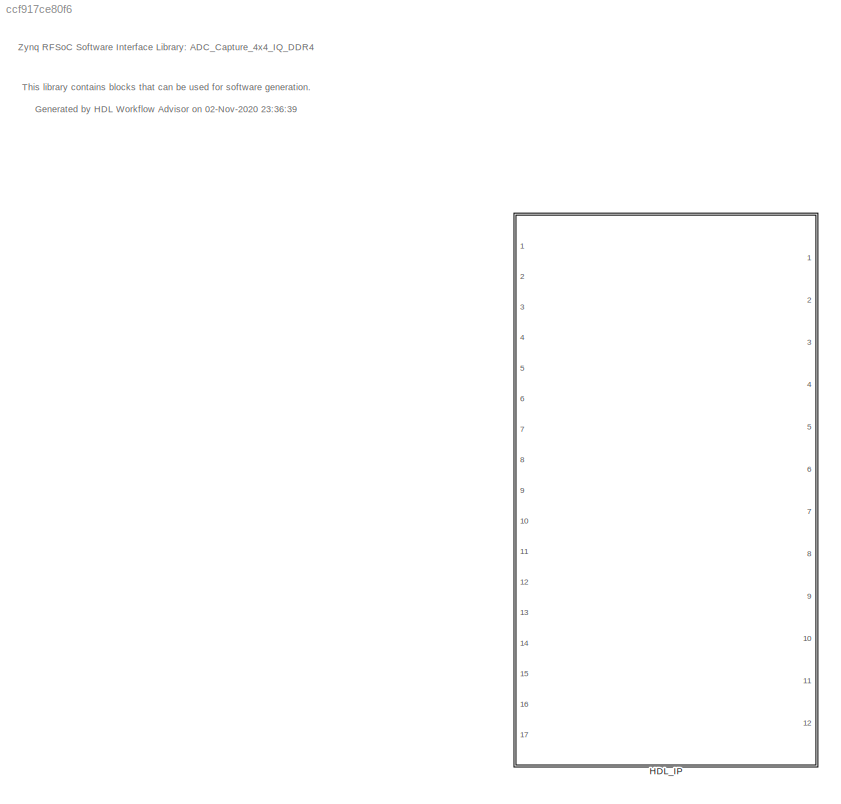
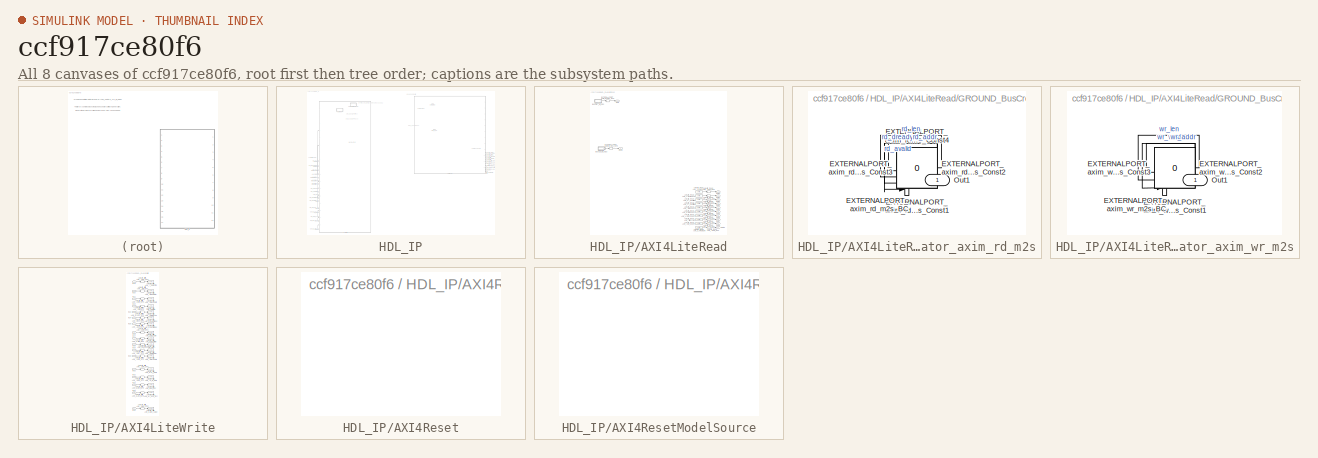
[diagram: thumbnail index - all 8 canvases of the model, root first then tree order]
MODEL slx_ccf917ce80f6
KIND library
CONFIG AbsTol = auto
CONFIG EnableMultiTasking = off
CONFIG FixedStep = auto
CONFIG MaxStep = auto
CONFIG MinStep = auto
CONFIG RelTol = 1e-3
CONFIG SampleTimeConstraint = Unconstrained
CONFIG Solver = VariableStepAuto
CONFIG SolverName = VariableStepAuto
CONFIG StartTime = 0.0
CONFIG StopTime = 10.0
BLOCK [SubSystem] HDL_IP
  Ports = [17, 12]
  RequestExecContextInheritance = off
  TreatAsAtomicUnit = on
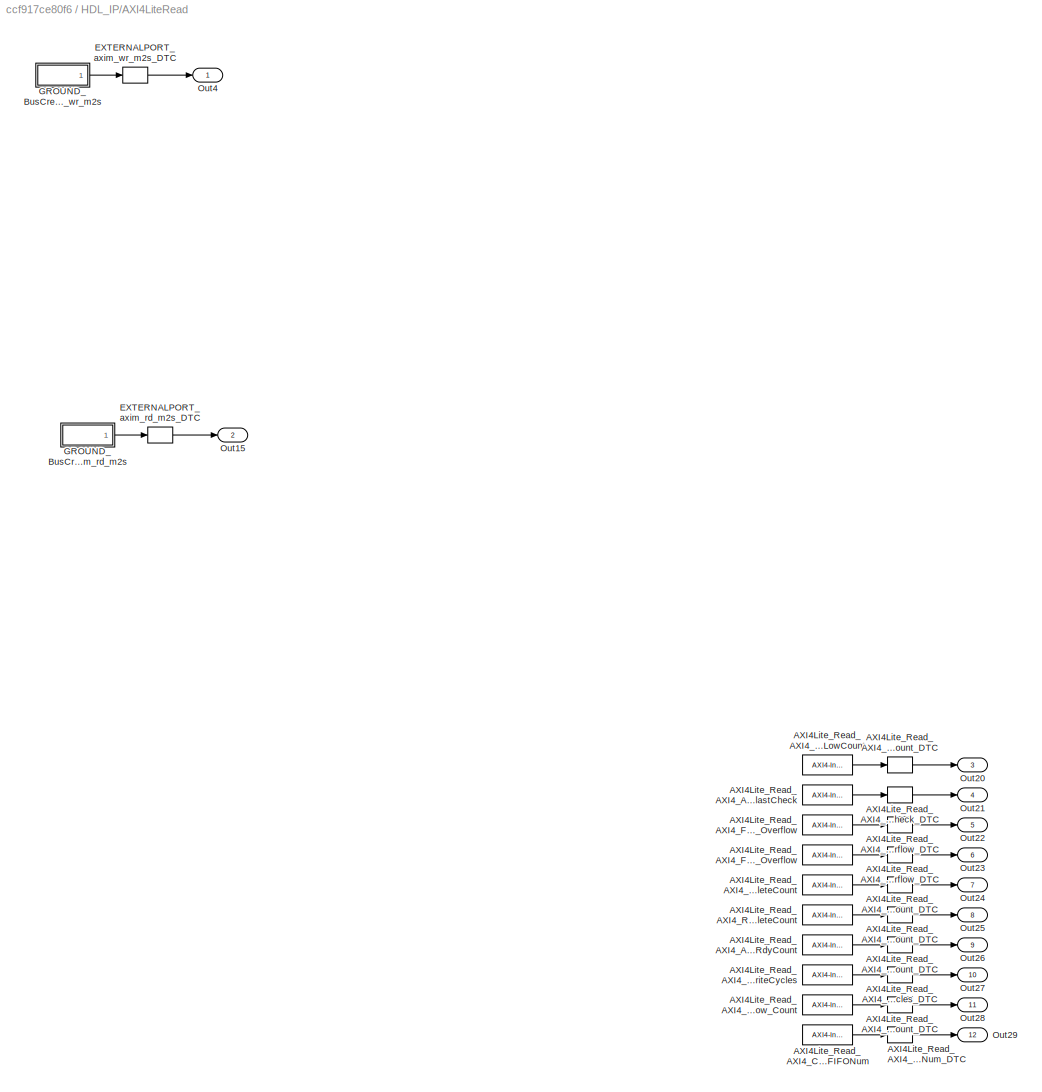
BLOCK [SubSystem] HDL_IP/AXI4LiteRead
  Ports = [0, 12]
  Priority = 10
  RequestExecContextInheritance = off
BLOCK [Reference] HDL_IP/AXI4LiteRead/AXI4Lite_Read_AXI4_AXI4S_TlastCheck  REF=axiinterfacelib/AXI4-Interface Read
  Ports = [0, 1]
  Priority = 22
  SourceBlock = axiinterfacelib/AXI4-Interface Read
  SourceProductBaseCode = ECZYNQ7000
  SourceProductName = Embedded Coder Support Package for Xilinx Zynq Platform
  SourceType = AXI4-Interface Read
BLOCK [DataTypeConversion] HDL_IP/AXI4LiteRead/AXI4Lite_Read_AXI4_AXI4S_TlastCheck_DTC
  ConvertRealWorld = Stored Integer (SI)
  OutDataTypeStr = fixdt('int32')
  RndMeth = Floor
  SaturateOnIntegerOverflow = off
BLOCK [Reference] HDL_IP/AXI4LiteRead/AXI4Lite_Read_AXI4_AccumulatedWrRdyCount  REF=axiinterfacelib/AXI4-Interface Read
  Ports = [0, 1]
  Priority = 27
  SourceBlock = axiinterfacelib/AXI4-Interface Read
  SourceProductBaseCode = ECZYNQ7000
  SourceProductName = Embedded Coder Support Package for Xilinx Zynq Platform
  SourceType = AXI4-Interface Read
BLOCK [DataTypeConversion] HDL_IP/AXI4LiteRead/AXI4Lite_Read_AXI4_AccumulatedWrRdyCount_DTC
  ConvertRealWorld = Stored Integer (SI)
  OutDataTypeStr = fixdt('uint32')
  RndMeth = Floor
  SaturateOnIntegerOverflow = off
BLOCK [Reference] HDL_IP/AXI4LiteRead/AXI4Lite_Read_AXI4_AckLow_Count  REF=axiinterfacelib/AXI4-Interface Read
  Ports = [0, 1]
  Priority = 29
  SourceBlock = axiinterfacelib/AXI4-Interface Read
  SourceProductBaseCode = ECZYNQ7000
  SourceProductName = Embedded Coder Support Package for Xilinx Zynq Platform
  SourceType = AXI4-Interface Read
BLOCK [DataTypeConversion] HDL_IP/AXI4LiteRead/AXI4Lite_Read_AXI4_AckLow_Count_DTC
  ConvertRealWorld = Stored Integer (SI)
  OutDataTypeStr = fixdt('uint32')
  RndMeth = Floor
  SaturateOnIntegerOverflow = off
BLOCK [Reference] HDL_IP/AXI4LiteRead/AXI4Lite_Read_AXI4_CaptureFIFONum  REF=axiinterfacelib/AXI4-Interface Read
  Ports = [0, 1]
  Priority = 30
  SourceBlock = axiinterfacelib/AXI4-Interface Read
  SourceProductBaseCode = ECZYNQ7000
  SourceProductName = Embedded Coder Support Package for Xilinx Zynq Platform
  SourceType = AXI4-Interface Read
BLOCK [DataTypeConversion] HDL_IP/AXI4LiteRead/AXI4Lite_Read_AXI4_CaptureFIFONum_DTC
  ConvertRealWorld = Stored Integer (SI)
  OutDataTypeStr = fixdt('uint32')
  RndMeth = Floor
  SaturateOnIntegerOverflow = off
BLOCK [Reference] HDL_IP/AXI4LiteRead/AXI4Lite_Read_AXI4_FIFOCapture_Overflow  REF=axiinterfacelib/AXI4-Interface Read
  Ports = [0, 1]
  Priority = 23
  SourceBlock = axiinterfacelib/AXI4-Interface Read
  SourceProductBaseCode = ECZYNQ7000
  SourceProductName = Embedded Coder Support Package for Xilinx Zynq Platform
  SourceType = AXI4-Interface Read
BLOCK [DataTypeConversion] HDL_IP/AXI4LiteRead/AXI4Lite_Read_AXI4_FIFOCapture_Overflow_DTC
  ConvertRealWorld = Stored Integer (SI)
  OutDataTypeStr = fixdt('uint32')
  RndMeth = Floor
  SaturateOnIntegerOverflow = off
BLOCK [Reference] HDL_IP/AXI4LiteRead/AXI4Lite_Read_AXI4_FIFODMA_Overflow  REF=axiinterfacelib/AXI4-Interface Read
  Ports = [0, 1]
  Priority = 24
  SourceBlock = axiinterfacelib/AXI4-Interface Read
  SourceProductBaseCode = ECZYNQ7000
  SourceProductName = Embedded Coder Support Package for Xilinx Zynq Platform
  SourceType = AXI4-Interface Read
BLOCK [DataTypeConversion] HDL_IP/AXI4LiteRead/AXI4Lite_Read_AXI4_FIFODMA_Overflow_DTC
  ConvertRealWorld = Stored Integer (SI)
  OutDataTypeStr = fixdt('uint32')
  RndMeth = Floor
  SaturateOnIntegerOverflow = off
BLOCK [Reference] HDL_IP/AXI4LiteRead/AXI4Lite_Read_AXI4_ReadCompleteCount  REF=axiinterfacelib/AXI4-Interface Read
  Ports = [0, 1]
  Priority = 26
  SourceBlock = axiinterfacelib/AXI4-Interface Read
  SourceProductBaseCode = ECZYNQ7000
  SourceProductName = Embedded Coder Support Package for Xilinx Zynq Platform
  SourceType = AXI4-Interface Read
BLOCK [DataTypeConversion] HDL_IP/AXI4LiteRead/AXI4Lite_Read_AXI4_ReadCompleteCount_DTC
  ConvertRealWorld = Stored Integer (SI)
  OutDataTypeStr = fixdt('uint32')
  RndMeth = Floor
  SaturateOnIntegerOverflow = off
BLOCK [Reference] HDL_IP/AXI4LiteRead/AXI4Lite_Read_AXI4_S2MM_TreadyLowCount  REF=axiinterfacelib/AXI4-Interface Read
  Ports = [0, 1]
  Priority = 21
  SourceBlock = axiinterfacelib/AXI4-Interface Read
  SourceProductBaseCode = ECZYNQ7000
  SourceProductName = Embedded Coder Support Package for Xilinx Zynq Platform
  SourceType = AXI4-Interface Read
BLOCK [DataTypeConversion] HDL_IP/AXI4LiteRead/AXI4Lite_Read_AXI4_S2MM_TreadyLowCount_DTC
  ConvertRealWorld = Stored Integer (SI)
  OutDataTypeStr = fixdt('uint32')
  RndMeth = Floor
  SaturateOnIntegerOverflow = off
BLOCK [Reference] HDL_IP/AXI4LiteRead/AXI4Lite_Read_AXI4_WastedWriteCycles  REF=axiinterfacelib/AXI4-Interface Read
  Ports = [0, 1]
  Priority = 28
  SourceBlock = axiinterfacelib/AXI4-Interface Read
  SourceProductBaseCode = ECZYNQ7000
  SourceProductName = Embedded Coder Support Package for Xilinx Zynq Platform
  SourceType = AXI4-Interface Read
BLOCK [DataTypeConversion] HDL_IP/AXI4LiteRead/AXI4Lite_Read_AXI4_WastedWriteCycles_DTC
  ConvertRealWorld = Stored Integer (SI)
  OutDataTypeStr = fixdt('uint32')
  RndMeth = Floor
  SaturateOnIntegerOverflow = off
BLOCK [Reference] HDL_IP/AXI4LiteRead/AXI4Lite_Read_AXI4_WriteCompleteCount  REF=axiinterfacelib/AXI4-Interface Read
  Ports = [0, 1]
  Priority = 25
  SourceBlock = axiinterfacelib/AXI4-Interface Read
  SourceProductBaseCode = ECZYNQ7000
  SourceProductName = Embedded Coder Support Package for Xilinx Zynq Platform
  SourceType = AXI4-Interface Read
BLOCK [DataTypeConversion] HDL_IP/AXI4LiteRead/AXI4Lite_Read_AXI4_WriteCompleteCount_DTC
  ConvertRealWorld = Stored Integer (SI)
  OutDataTypeStr = fixdt('uint32')
  RndMeth = Floor
  SaturateOnIntegerOverflow = off
BLOCK [DataTypeConversion] HDL_IP/AXI4LiteRead/EXTERNALPORT_axim_rd_m2s_DTC
  Commented = through
  OutDataTypeStr = fixdt('bus')
  RndMeth = Floor
  SaturateOnIntegerOverflow = off
BLOCK [DataTypeConversion] HDL_IP/AXI4LiteRead/EXTERNALPORT_axim_wr_m2s_DTC
  Commented = through
  OutDataTypeStr = fixdt('bus')
  RndMeth = Floor
  SaturateOnIntegerOverflow = off
BLOCK [SubSystem] HDL_IP/AXI4LiteRead/GROUND_BusCreator_axim_rd_m2s
  Ports = [0, 1]
  RequestExecContextInheritance = off
BLOCK [BusCreator] HDL_IP/AXI4LiteRead/GROUND_BusCreator_axim_rd_m2s/EXTERNALPORT_axim_rd_m2s_BC
  DisplayOption = bar
  InheritFromInputs = on
  Inputs = 4
  Ports = [4, 1]
BLOCK [Constant] HDL_IP/AXI4LiteRead/GROUND_BusCreator_axim_rd_m2s/EXTERNALPORT_axim_rd_m2s_Const1
  OutDataTypeStr = fixdt(0,32,0)
  SampleTime = -1
  Value = 0
BLOCK [Constant] HDL_IP/AXI4LiteRead/GROUND_BusCreator_axim_rd_m2s/EXTERNALPORT_axim_rd_m2s_Const2
  OutDataTypeStr = fixdt(0,32,0)
  SampleTime = -1
  Value = 0
BLOCK [Constant] HDL_IP/AXI4LiteRead/GROUND_BusCreator_axim_rd_m2s/EXTERNALPORT_axim_rd_m2s_Const3
  OutDataTypeStr = fixdt('boolean')
  SampleTime = -1
  Value = 0
BLOCK [Constant] HDL_IP/AXI4LiteRead/GROUND_BusCreator_axim_rd_m2s/EXTERNALPORT_axim_rd_m2s_Const4
  OutDataTypeStr = fixdt('boolean')
  SampleTime = -1
  Value = 0
BLOCK [Outport] HDL_IP/AXI4LiteRead/GROUND_BusCreator_axim_rd_m2s/Out1
  IconDisplay = Port number
BLOCK [SubSystem] HDL_IP/AXI4LiteRead/GROUND_BusCreator_axim_wr_m2s
  Ports = [0, 1]
  RequestExecContextInheritance = off
BLOCK [BusCreator] HDL_IP/AXI4LiteRead/GROUND_BusCreator_axim_wr_m2s/EXTERNALPORT_axim_wr_m2s_BC
  DisplayOption = bar
  InheritFromInputs = on
  Inputs = 3
  Ports = [3, 1]
BLOCK [Constant] HDL_IP/AXI4LiteRead/GROUND_BusCreator_axim_wr_m2s/EXTERNALPORT_axim_wr_m2s_Const1
  OutDataTypeStr = fixdt(0,32,0)
  SampleTime = -1
  Value = 0
BLOCK [Constant] HDL_IP/AXI4LiteRead/GROUND_BusCreator_axim_wr_m2s/EXTERNALPORT_axim_wr_m2s_Const2
  OutDataTypeStr = fixdt(0,32,0)
  SampleTime = -1
  Value = 0
BLOCK [Constant] HDL_IP/AXI4LiteRead/GROUND_BusCreator_axim_wr_m2s/EXTERNALPORT_axim_wr_m2s_Const3
  OutDataTypeStr = fixdt('boolean')
  SampleTime = -1
  Value = 0
BLOCK [Outport] HDL_IP/AXI4LiteRead/GROUND_BusCreator_axim_wr_m2s/Out1
  IconDisplay = Port number
BLOCK [Outport] HDL_IP/AXI4LiteRead/Out15
  IconDisplay = Port number
  Port = 2
BLOCK [Outport] HDL_IP/AXI4LiteRead/Out20
  IconDisplay = Port number
  Port = 3
BLOCK [Outport] HDL_IP/AXI4LiteRead/Out21
  IconDisplay = Port number
  Port = 4
BLOCK [Outport] HDL_IP/AXI4LiteRead/Out22
  IconDisplay = Port number
  Port = 5
BLOCK [Outport] HDL_IP/AXI4LiteRead/Out23
  IconDisplay = Port number
  Port = 6
BLOCK [Outport] HDL_IP/AXI4LiteRead/Out24
  IconDisplay = Port number
  Port = 7
BLOCK [Outport] HDL_IP/AXI4LiteRead/Out25
  IconDisplay = Port number
  Port = 8
BLOCK [Outport] HDL_IP/AXI4LiteRead/Out26
  IconDisplay = Port number
  Port = 9
BLOCK [Outport] HDL_IP/AXI4LiteRead/Out27
  IconDisplay = Port number
  Port = 10
BLOCK [Outport] HDL_IP/AXI4LiteRead/Out28
  IconDisplay = Port number
  Port = 11
BLOCK [Outport] HDL_IP/AXI4LiteRead/Out29
  IconDisplay = Port number
  Port = 12
BLOCK [Outport] HDL_IP/AXI4LiteRead/Out4
  IconDisplay = Port number
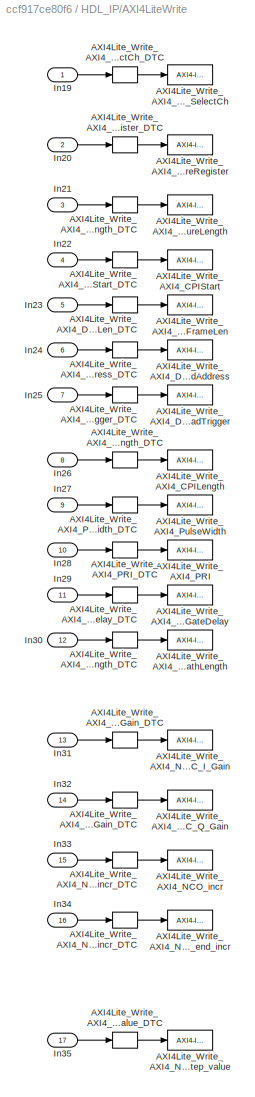
BLOCK [SubSystem] HDL_IP/AXI4LiteWrite
  Ports = [17]
  Priority = 1
  RequestExecContextInheritance = off
BLOCK [Reference] HDL_IP/AXI4LiteWrite/AXI4Lite_Write_AXI4_ADC_CaptureLength  REF=axiinterfacelib/AXI4-Interface Write
  Ports = [1]
  Priority = 22
  SourceBlock = axiinterfacelib/AXI4-Interface Write
  SourceProductBaseCode = ECZYNQ7000
  SourceProductName = Embedded Coder Support Package for Xilinx Zynq Platform
  SourceType = AXI4-Interface Write
BLOCK [DataTypeConversion] HDL_IP/AXI4LiteWrite/AXI4Lite_Write_AXI4_ADC_CaptureLength_DTC
  ConvertRealWorld = Stored Integer (SI)
  OutDataTypeStr = uint32
  RndMeth = Floor
  SaturateOnIntegerOverflow = off
BLOCK [Reference] HDL_IP/AXI4LiteWrite/AXI4Lite_Write_AXI4_ADC_SelectCh  REF=axiinterfacelib/AXI4-Interface Write
  Ports = [1]
  Priority = 19
  SourceBlock = axiinterfacelib/AXI4-Interface Write
  SourceProductBaseCode = ECZYNQ7000
  SourceProductName = Embedded Coder Support Package for Xilinx Zynq Platform
  SourceType = AXI4-Interface Write
BLOCK [DataTypeConversion] HDL_IP/AXI4LiteWrite/AXI4Lite_Write_AXI4_ADC_SelectCh_DTC
  ConvertRealWorld = Stored Integer (SI)
  OutDataTypeStr = uint32
  RndMeth = Floor
  SaturateOnIntegerOverflow = off
BLOCK [Reference] HDL_IP/AXI4LiteWrite/AXI4Lite_Write_AXI4_CPILength  REF=axiinterfacelib/AXI4-Interface Write
  Ports = [1]
  Priority = 26
  SourceBlock = axiinterfacelib/AXI4-Interface Write
  SourceProductBaseCode = ECZYNQ7000
  SourceProductName = Embedded Coder Support Package for Xilinx Zynq Platform
  SourceType = AXI4-Interface Write
BLOCK [DataTypeConversion] HDL_IP/AXI4LiteWrite/AXI4Lite_Write_AXI4_CPILength_DTC
  ConvertRealWorld = Stored Integer (SI)
  OutDataTypeStr = uint32
  RndMeth = Floor
  SaturateOnIntegerOverflow = off
BLOCK [Reference] HDL_IP/AXI4LiteWrite/AXI4Lite_Write_AXI4_CPIStart  REF=axiinterfacelib/AXI4-Interface Write
  Ports = [1]
  Priority = 20
  SourceBlock = axiinterfacelib/AXI4-Interface Write
  SourceProductBaseCode = ECZYNQ7000
  SourceProductName = Embedded Coder Support Package for Xilinx Zynq Platform
  SourceType = AXI4-Interface Write
BLOCK [DataTypeConversion] HDL_IP/AXI4LiteWrite/AXI4Lite_Write_AXI4_CPIStart_DTC
  ConvertRealWorld = Stored Integer (SI)
  OutDataTypeStr = uint32
  RndMeth = Floor
  SaturateOnIntegerOverflow = off
BLOCK [Reference] HDL_IP/AXI4LiteWrite/AXI4Lite_Write_AXI4_DDR4_ReadAddress  REF=axiinterfacelib/AXI4-Interface Write
  Ports = [1]
  Priority = 24
  SourceBlock = axiinterfacelib/AXI4-Interface Write
  SourceProductBaseCode = ECZYNQ7000
  SourceProductName = Embedded Coder Support Package for Xilinx Zynq Platform
  SourceType = AXI4-Interface Write
BLOCK [DataTypeConversion] HDL_IP/AXI4LiteWrite/AXI4Lite_Write_AXI4_DDR4_ReadAddress_DTC
  ConvertRealWorld = Stored Integer (SI)
  OutDataTypeStr = uint32
  RndMeth = Floor
  SaturateOnIntegerOverflow = off
BLOCK [Reference] HDL_IP/AXI4LiteWrite/AXI4Lite_Write_AXI4_DDR4_ReadFrameLen  REF=axiinterfacelib/AXI4-Interface Write
  Ports = [1]
  Priority = 23
  SourceBlock = axiinterfacelib/AXI4-Interface Write
  SourceProductBaseCode = ECZYNQ7000
  SourceProductName = Embedded Coder Support Package for Xilinx Zynq Platform
  SourceType = AXI4-Interface Write
BLOCK [DataTypeConversion] HDL_IP/AXI4LiteWrite/AXI4Lite_Write_AXI4_DDR4_ReadFrameLen_DTC
  ConvertRealWorld = Stored Integer (SI)
  OutDataTypeStr = uint32
  RndMeth = Floor
  SaturateOnIntegerOverflow = off
BLOCK [Reference] HDL_IP/AXI4LiteWrite/AXI4Lite_Write_AXI4_DDR4_ReadTrigger  REF=axiinterfacelib/AXI4-Interface Write
  Ports = [1]
  Priority = 25
  SourceBlock = axiinterfacelib/AXI4-Interface Write
  SourceProductBaseCode = ECZYNQ7000
  SourceProductName = Embedded Coder Support Package for Xilinx Zynq Platform
  SourceType = AXI4-Interface Write
BLOCK [DataTypeConversion] HDL_IP/AXI4LiteWrite/AXI4Lite_Write_AXI4_DDR4_ReadTrigger_DTC
  ConvertRealWorld = Stored Integer (SI)
  OutDataTypeStr = uint32
  RndMeth = Floor
  SaturateOnIntegerOverflow = off
BLOCK [Reference] HDL_IP/AXI4LiteWrite/AXI4Lite_Write_AXI4_DebugCaptureRegister  REF=axiinterfacelib/AXI4-Interface Write
  Ports = [1]
  Priority = 21
  SourceBlock = axiinterfacelib/AXI4-Interface Write
  SourceProductBaseCode = ECZYNQ7000
  SourceProductName = Embedded Coder Support Package for Xilinx Zynq Platform
  SourceType = AXI4-Interface Write
BLOCK [DataTypeConversion] HDL_IP/AXI4LiteWrite/AXI4Lite_Write_AXI4_DebugCaptureRegister_DTC
  ConvertRealWorld = Stored Integer (SI)
  OutDataTypeStr = uint32
  RndMeth = Floor
  SaturateOnIntegerOverflow = off
BLOCK [Reference] HDL_IP/AXI4LiteWrite/AXI4Lite_Write_AXI4_NCO_DAC_I_Gain  REF=axiinterfacelib/AXI4-Interface Write
  Ports = [1]
  Priority = 32
  SourceBlock = axiinterfacelib/AXI4-Interface Write
  SourceProductBaseCode = ECZYNQ7000
  SourceProductName = Embedded Coder Support Package for Xilinx Zynq Platform
  SourceType = AXI4-Interface Write
BLOCK [DataTypeConversion] HDL_IP/AXI4LiteWrite/AXI4Lite_Write_AXI4_NCO_DAC_I_Gain_DTC
  ConvertRealWorld = Stored Integer (SI)
  OutDataTypeStr = uint32
  RndMeth = Floor
  SaturateOnIntegerOverflow = off
BLOCK [Reference] HDL_IP/AXI4LiteWrite/AXI4Lite_Write_AXI4_NCO_DAC_Q_Gain  REF=axiinterfacelib/AXI4-Interface Write
  Ports = [1]
  Priority = 33
  SourceBlock = axiinterfacelib/AXI4-Interface Write
  SourceProductBaseCode = ECZYNQ7000
  SourceProductName = Embedded Coder Support Package for Xilinx Zynq Platform
  SourceType = AXI4-Interface Write
BLOCK [DataTypeConversion] HDL_IP/AXI4LiteWrite/AXI4Lite_Write_AXI4_NCO_DAC_Q_Gain_DTC
  ConvertRealWorld = Stored Integer (SI)
  OutDataTypeStr = uint32
  RndMeth = Floor
  SaturateOnIntegerOverflow = off
BLOCK [Reference] HDL_IP/AXI4LiteWrite/AXI4Lite_Write_AXI4_NCO_end_incr  REF=axiinterfacelib/AXI4-Interface Write
  Ports = [1]
  Priority = 34
  SourceBlock = axiinterfacelib/AXI4-Interface Write
  SourceProductBaseCode = ECZYNQ7000
  SourceProductName = Embedded Coder Support Package for Xilinx Zynq Platform
  SourceType = AXI4-Interface Write
BLOCK [DataTypeConversion] HDL_IP/AXI4LiteWrite/AXI4Lite_Write_AXI4_NCO_end_incr_DTC
  ConvertRealWorld = Stored Integer (SI)
  OutDataTypeStr = uint32
  RndMeth = Floor
  SaturateOnIntegerOverflow = off
BLOCK [Reference] HDL_IP/AXI4LiteWrite/AXI4Lite_Write_AXI4_NCO_incr  REF=axiinterfacelib/AXI4-Interface Write
  Ports = [1]
  Priority = 31
  SourceBlock = axiinterfacelib/AXI4-Interface Write
  SourceProductBaseCode = ECZYNQ7000
  SourceProductName = Embedded Coder Support Package for Xilinx Zynq Platform
  SourceType = AXI4-Interface Write
BLOCK [DataTypeConversion] HDL_IP/AXI4LiteWrite/AXI4Lite_Write_AXI4_NCO_incr_DTC
  ConvertRealWorld = Stored Integer (SI)
  OutDataTypeStr = uint32
  RndMeth = Floor
  SaturateOnIntegerOverflow = off
BLOCK [Reference] HDL_IP/AXI4LiteWrite/AXI4Lite_Write_AXI4_NCO_step_value  REF=axiinterfacelib/AXI4-Interface Write
  Ports = [1]
  Priority = 35
  SourceBlock = axiinterfacelib/AXI4-Interface Write
  SourceProductBaseCode = ECZYNQ7000
  SourceProductName = Embedded Coder Support Package for Xilinx Zynq Platform
  SourceType = AXI4-Interface Write
BLOCK [DataTypeConversion] HDL_IP/AXI4LiteWrite/AXI4Lite_Write_AXI4_NCO_step_value_DTC
  ConvertRealWorld = Stored Integer (SI)
  OutDataTypeStr = uint32
  RndMeth = Floor
  SaturateOnIntegerOverflow = off
BLOCK [Reference] HDL_IP/AXI4LiteWrite/AXI4Lite_Write_AXI4_PRI  REF=axiinterfacelib/AXI4-Interface Write
  Ports = [1]
  Priority = 28
  SourceBlock = axiinterfacelib/AXI4-Interface Write
  SourceProductBaseCode = ECZYNQ7000
  SourceProductName = Embedded Coder Support Package for Xilinx Zynq Platform
  SourceType = AXI4-Interface Write
BLOCK [DataTypeConversion] HDL_IP/AXI4LiteWrite/AXI4Lite_Write_AXI4_PRI_DTC
  ConvertRealWorld = Stored Integer (SI)
  OutDataTypeStr = uint32
  RndMeth = Floor
  SaturateOnIntegerOverflow = off
BLOCK [Reference] HDL_IP/AXI4LiteWrite/AXI4Lite_Write_AXI4_PulseWidth  REF=axiinterfacelib/AXI4-Interface Write
  Ports = [1]
  Priority = 27
  SourceBlock = axiinterfacelib/AXI4-Interface Write
  SourceProductBaseCode = ECZYNQ7000
  SourceProductName = Embedded Coder Support Package for Xilinx Zynq Platform
  SourceType = AXI4-Interface Write
BLOCK [DataTypeConversion] HDL_IP/AXI4LiteWrite/AXI4Lite_Write_AXI4_PulseWidth_DTC
  ConvertRealWorld = Stored Integer (SI)
  OutDataTypeStr = uint32
  RndMeth = Floor
  SaturateOnIntegerOverflow = off
BLOCK [Reference] HDL_IP/AXI4LiteWrite/AXI4Lite_Write_AXI4_RngGateDelay  REF=axiinterfacelib/AXI4-Interface Write
  Ports = [1]
  Priority = 29
  SourceBlock = axiinterfacelib/AXI4-Interface Write
  SourceProductBaseCode = ECZYNQ7000
  SourceProductName = Embedded Coder Support Package for Xilinx Zynq Platform
  SourceType = AXI4-Interface Write
BLOCK [DataTypeConversion] HDL_IP/AXI4LiteWrite/AXI4Lite_Write_AXI4_RngGateDelay_DTC
  ConvertRealWorld = Stored Integer (SI)
  OutDataTypeStr = uint32
  RndMeth = Floor
  SaturateOnIntegerOverflow = off
BLOCK [Reference] HDL_IP/AXI4LiteWrite/AXI4Lite_Write_AXI4_RngSwathLength  REF=axiinterfacelib/AXI4-Interface Write
  Ports = [1]
  Priority = 30
  SourceBlock = axiinterfacelib/AXI4-Interface Write
  SourceProductBaseCode = ECZYNQ7000
  SourceProductName = Embedded Coder Support Package for Xilinx Zynq Platform
  SourceType = AXI4-Interface Write
BLOCK [DataTypeConversion] HDL_IP/AXI4LiteWrite/AXI4Lite_Write_AXI4_RngSwathLength_DTC
  ConvertRealWorld = Stored Integer (SI)
  OutDataTypeStr = uint32
  RndMeth = Floor
  SaturateOnIntegerOverflow = off
BLOCK [Inport] HDL_IP/AXI4LiteWrite/In19
  IconDisplay = Port number
BLOCK [Inport] HDL_IP/AXI4LiteWrite/In20
  IconDisplay = Port number
  Port = 2
BLOCK [Inport] HDL_IP/AXI4LiteWrite/In21
  IconDisplay = Port number
  Port = 3
BLOCK [Inport] HDL_IP/AXI4LiteWrite/In22
  IconDisplay = Port number
  Port = 4
BLOCK [Inport] HDL_IP/AXI4LiteWrite/In23
  IconDisplay = Port number
  Port = 5
BLOCK [Inport] HDL_IP/AXI4LiteWrite/In24
  IconDisplay = Port number
  Port = 6
BLOCK [Inport] HDL_IP/AXI4LiteWrite/In25
  IconDisplay = Port number
  Port = 7
BLOCK [Inport] HDL_IP/AXI4LiteWrite/In26
  IconDisplay = Port number
  Port = 8
BLOCK [Inport] HDL_IP/AXI4LiteWrite/In27
  IconDisplay = Port number
  Port = 9
BLOCK [Inport] HDL_IP/AXI4LiteWrite/In28
  IconDisplay = Port number
  Port = 10
BLOCK [Inport] HDL_IP/AXI4LiteWrite/In29
  IconDisplay = Port number
  Port = 11
BLOCK [Inport] HDL_IP/AXI4LiteWrite/In30
  IconDisplay = Port number
  Port = 12
BLOCK [Inport] HDL_IP/AXI4LiteWrite/In31
  IconDisplay = Port number
  Port = 13
BLOCK [Inport] HDL_IP/AXI4LiteWrite/In32
  IconDisplay = Port number
  Port = 14
BLOCK [Inport] HDL_IP/AXI4LiteWrite/In33
  IconDisplay = Port number
  Port = 15
BLOCK [Inport] HDL_IP/AXI4LiteWrite/In34
  IconDisplay = Port number
  Port = 16
BLOCK [Inport] HDL_IP/AXI4LiteWrite/In35
  IconDisplay = Port number
  Port = 17
BLOCK [SubSystem] HDL_IP/AXI4Reset
  CopyFcn = cccopyfcn(gcb)
  OpenFcn = ccopenfcn('System Start Function')
  Ports = []
  RequestExecContextInheritance = off
BLOCK [SubSystem] HDL_IP/AXI4ResetModelSource
  CopyFcn = cccopyfcn(gcb)
  OpenFcn = ccopenfcn('Model Source')
  Ports = []
  RequestExecContextInheritance = off
BLOCK [Inport] HDL_IP/AXI4_ADC_CaptureLength
  IconDisplay = Port number
  Port = 4
BLOCK [Inport] HDL_IP/AXI4_ADC_SelectCh
  IconDisplay = Port number
BLOCK [Outport] HDL_IP/AXI4_AXI4S_TlastCheck
  IconDisplay = Port number
  Port = 4
  VectorParamsAs1DForOutWhenUnconnected = off
BLOCK [Outport] HDL_IP/AXI4_AccumulatedWrRdyCount
  IconDisplay = Port number
  Port = 9
  VectorParamsAs1DForOutWhenUnconnected = off
BLOCK [Outport] HDL_IP/AXI4_AckLow_Count
  IconDisplay = Port number
  Port = 11
  VectorParamsAs1DForOutWhenUnconnected = off
BLOCK [Inport] HDL_IP/AXI4_CPILength
  IconDisplay = Port number
  Port = 8
BLOCK [Inport] HDL_IP/AXI4_CPIStart
  IconDisplay = Port number
  Port = 2
BLOCK [Outport] HDL_IP/AXI4_CaptureFIFONum
  IconDisplay = Port number
  Port = 12
  VectorParamsAs1DForOutWhenUnconnected = off
BLOCK [Inport] HDL_IP/AXI4_DDR4_ReadAddress
  IconDisplay = Port number
  Port = 6
BLOCK [Inport] HDL_IP/AXI4_DDR4_ReadFrameLen
  IconDisplay = Port number
  Port = 5
BLOCK [Inport] HDL_IP/AXI4_DDR4_ReadTrigger
  IconDisplay = Port number
  Port = 7
BLOCK [Inport] HDL_IP/AXI4_DebugCaptureRegister
  IconDisplay = Port number
  Port = 3
BLOCK [Outport] HDL_IP/AXI4_FIFOCapture_Overflow
  IconDisplay = Port number
  Port = 5
  VectorParamsAs1DForOutWhenUnconnected = off
BLOCK [Outport] HDL_IP/AXI4_FIFODMA_Overflow
  IconDisplay = Port number
  Port = 6
  VectorParamsAs1DForOutWhenUnconnected = off
BLOCK [Inport] HDL_IP/AXI4_NCO_DAC_I_Gain
  IconDisplay = Port number
  Port = 14
BLOCK [Inport] HDL_IP/AXI4_NCO_DAC_Q_Gain
  IconDisplay = Port number
  Port = 15
BLOCK [Inport] HDL_IP/AXI4_NCO_end_incr
  IconDisplay = Port number
  Port = 16
BLOCK [Inport] HDL_IP/AXI4_NCO_incr
  IconDisplay = Port number
  Port = 13
BLOCK [Inport] HDL_IP/AXI4_NCO_step_value
  IconDisplay = Port number
  Port = 17
BLOCK [Inport] HDL_IP/AXI4_PRI
  IconDisplay = Port number
  Port = 10
BLOCK [Inport] HDL_IP/AXI4_PulseWidth
  IconDisplay = Port number
  Port = 9
BLOCK [Outport] HDL_IP/AXI4_ReadCompleteCount
  IconDisplay = Port number
  Port = 8
  VectorParamsAs1DForOutWhenUnconnected = off
BLOCK [Inport] HDL_IP/AXI4_RngGateDelay
  IconDisplay = Port number
  Port = 11
BLOCK [Inport] HDL_IP/AXI4_RngSwathLength
  IconDisplay = Port number
  Port = 12
BLOCK [Outport] HDL_IP/AXI4_S2MM_TreadyLowCount
  IconDisplay = Port number
  Port = 3
  VectorParamsAs1DForOutWhenUnconnected = off
BLOCK [Outport] HDL_IP/AXI4_WastedWriteCycles
  IconDisplay = Port number
  Port = 10
  VectorParamsAs1DForOutWhenUnconnected = off
BLOCK [Outport] HDL_IP/AXI4_WriteCompleteCount
  IconDisplay = Port number
  Port = 7
  VectorParamsAs1DForOutWhenUnconnected = off
BLOCK [Outport] HDL_IP/axim_rd_m2s
  IconDisplay = Port number
  VectorParamsAs1DForOutWhenUnconnected = off
BLOCK [Outport] HDL_IP/axim_wr_m2s
  IconDisplay = Port number
  Port = 2
  VectorParamsAs1DForOutWhenUnconnected = off
ANNOTATION (root): This library contains blocks that can be used for software generation. Generated by HDL Workflow Advisor on 02-Nov-2020 23:36:39
ANNOTATION (root): Zynq RFSoC Software Interface Library: ADC_Capture_4x4_IQ_DDR4
ANNOTATION HDL_IP: AXI4 MM Read Registers
ANNOTATION HDL_IP: AXI4 MM Write Registers
ANNOTATION HDL_IP: Generated by HDL Workflow Advisor on 02-Nov-2020 23:36:12
ANNOTATION HDL_IP: MM2S - DMA Stream
ANNOTATION HDL_IP: S2MM - DMA Stream
ANNOTATION HDL_IP: axim_rd_m2s - DDR4 Read
ANNOTATION HDL_IP: axim_rd_m2s - DDR4 Read Ack
ANNOTATION HDL_IP: axim_wr_m2s - DDR4 Write
ANNOTATION HDL_IP: axim_wr_m2s - DDR4 Write Ack
LINE HDL_IP/AXI4LiteRead/AXI4Lite_Read_AXI4_AXI4S_TlastCheck:1 -> HDL_IP/AXI4LiteRead/AXI4Lite_Read_AXI4_AXI4S_TlastCheck_DTC:1
LINE HDL_IP/AXI4LiteRead/AXI4Lite_Read_AXI4_AXI4S_TlastCheck_DTC:1 -> HDL_IP/AXI4LiteRead/Out21:1
LINE HDL_IP/AXI4LiteRead/AXI4Lite_Read_AXI4_AccumulatedWrRdyCount:1 -> HDL_IP/AXI4LiteRead/AXI4Lite_Read_AXI4_AccumulatedWrRdyCount_DTC:1
LINE HDL_IP/AXI4LiteRead/AXI4Lite_Read_AXI4_AccumulatedWrRdyCount_DTC:1 -> HDL_IP/AXI4LiteRead/Out26:1
LINE HDL_IP/AXI4LiteRead/AXI4Lite_Read_AXI4_AckLow_Count:1 -> HDL_IP/AXI4LiteRead/AXI4Lite_Read_AXI4_AckLow_Count_DTC:1
LINE HDL_IP/AXI4LiteRead/AXI4Lite_Read_AXI4_AckLow_Count_DTC:1 -> HDL_IP/AXI4LiteRead/Out28:1
LINE HDL_IP/AXI4LiteRead/AXI4Lite_Read_AXI4_CaptureFIFONum:1 -> HDL_IP/AXI4LiteRead/AXI4Lite_Read_AXI4_CaptureFIFONum_DTC:1
LINE HDL_IP/AXI4LiteRead/AXI4Lite_Read_AXI4_CaptureFIFONum_DTC:1 -> HDL_IP/AXI4LiteRead/Out29:1
LINE HDL_IP/AXI4LiteRead/AXI4Lite_Read_AXI4_FIFOCapture_Overflow:1 -> HDL_IP/AXI4LiteRead/AXI4Lite_Read_AXI4_FIFOCapture_Overflow_DTC:1
LINE HDL_IP/AXI4LiteRead/AXI4Lite_Read_AXI4_FIFOCapture_Overflow_DTC:1 -> HDL_IP/AXI4LiteRead/Out22:1
LINE HDL_IP/AXI4LiteRead/AXI4Lite_Read_AXI4_FIFODMA_Overflow:1 -> HDL_IP/AXI4LiteRead/AXI4Lite_Read_AXI4_FIFODMA_Overflow_DTC:1
LINE HDL_IP/AXI4LiteRead/AXI4Lite_Read_AXI4_FIFODMA_Overflow_DTC:1 -> HDL_IP/AXI4LiteRead/Out23:1
LINE HDL_IP/AXI4LiteRead/AXI4Lite_Read_AXI4_ReadCompleteCount:1 -> HDL_IP/AXI4LiteRead/AXI4Lite_Read_AXI4_ReadCompleteCount_DTC:1
LINE HDL_IP/AXI4LiteRead/AXI4Lite_Read_AXI4_ReadCompleteCount_DTC:1 -> HDL_IP/AXI4LiteRead/Out25:1
LINE HDL_IP/AXI4LiteRead/AXI4Lite_Read_AXI4_S2MM_TreadyLowCount:1 -> HDL_IP/AXI4LiteRead/AXI4Lite_Read_AXI4_S2MM_TreadyLowCount_DTC:1
LINE HDL_IP/AXI4LiteRead/AXI4Lite_Read_AXI4_S2MM_TreadyLowCount_DTC:1 -> HDL_IP/AXI4LiteRead/Out20:1
LINE HDL_IP/AXI4LiteRead/AXI4Lite_Read_AXI4_WastedWriteCycles:1 -> HDL_IP/AXI4LiteRead/AXI4Lite_Read_AXI4_WastedWriteCycles_DTC:1
LINE HDL_IP/AXI4LiteRead/AXI4Lite_Read_AXI4_WastedWriteCycles_DTC:1 -> HDL_IP/AXI4LiteRead/Out27:1
LINE HDL_IP/AXI4LiteRead/AXI4Lite_Read_AXI4_WriteCompleteCount:1 -> HDL_IP/AXI4LiteRead/AXI4Lite_Read_AXI4_WriteCompleteCount_DTC:1
LINE HDL_IP/AXI4LiteRead/AXI4Lite_Read_AXI4_WriteCompleteCount_DTC:1 -> HDL_IP/AXI4LiteRead/Out24:1
LINE HDL_IP/AXI4LiteRead/EXTERNALPORT_axim_rd_m2s_DTC:1 -> HDL_IP/AXI4LiteRead/Out15:1
LINE HDL_IP/AXI4LiteRead/EXTERNALPORT_axim_wr_m2s_DTC:1 -> HDL_IP/AXI4LiteRead/Out4:1
LINE HDL_IP/AXI4LiteRead/GROUND_BusCreator_axim_rd_m2s/EXTERNALPORT_axim_rd_m2s_BC:1 -> HDL_IP/AXI4LiteRead/GROUND_BusCreator_axim_rd_m2s/Out1:1
LINE HDL_IP/AXI4LiteRead/GROUND_BusCreator_axim_rd_m2s/EXTERNALPORT_axim_rd_m2s_Const1:1 -> HDL_IP/AXI4LiteRead/GROUND_BusCreator_axim_rd_m2s/EXTERNALPORT_axim_rd_m2s_BC:1
LINE HDL_IP/AXI4LiteRead/GROUND_BusCreator_axim_rd_m2s/EXTERNALPORT_axim_rd_m2s_Const2:1 -> HDL_IP/AXI4LiteRead/GROUND_BusCreator_axim_rd_m2s/EXTERNALPORT_axim_rd_m2s_BC:2
LINE HDL_IP/AXI4LiteRead/GROUND_BusCreator_axim_rd_m2s/EXTERNALPORT_axim_rd_m2s_Const3:1 -> HDL_IP/AXI4LiteRead/GROUND_BusCreator_axim_rd_m2s/EXTERNALPORT_axim_rd_m2s_BC:3
LINE HDL_IP/AXI4LiteRead/GROUND_BusCreator_axim_rd_m2s/EXTERNALPORT_axim_rd_m2s_Const4:1 -> HDL_IP/AXI4LiteRead/GROUND_BusCreator_axim_rd_m2s/EXTERNALPORT_axim_rd_m2s_BC:4
LINE HDL_IP/AXI4LiteRead/GROUND_BusCreator_axim_rd_m2s:1 -> HDL_IP/AXI4LiteRead/EXTERNALPORT_axim_rd_m2s_DTC:1
LINE HDL_IP/AXI4LiteRead/GROUND_BusCreator_axim_wr_m2s/EXTERNALPORT_axim_wr_m2s_BC:1 -> HDL_IP/AXI4LiteRead/GROUND_BusCreator_axim_wr_m2s/Out1:1
LINE HDL_IP/AXI4LiteRead/GROUND_BusCreator_axim_wr_m2s/EXTERNALPORT_axim_wr_m2s_Const1:1 -> HDL_IP/AXI4LiteRead/GROUND_BusCreator_axim_wr_m2s/EXTERNALPORT_axim_wr_m2s_BC:1
LINE HDL_IP/AXI4LiteRead/GROUND_BusCreator_axim_wr_m2s/EXTERNALPORT_axim_wr_m2s_Const2:1 -> HDL_IP/AXI4LiteRead/GROUND_BusCreator_axim_wr_m2s/EXTERNALPORT_axim_wr_m2s_BC:2
LINE HDL_IP/AXI4LiteRead/GROUND_BusCreator_axim_wr_m2s/EXTERNALPORT_axim_wr_m2s_Const3:1 -> HDL_IP/AXI4LiteRead/GROUND_BusCreator_axim_wr_m2s/EXTERNALPORT_axim_wr_m2s_BC:3
LINE HDL_IP/AXI4LiteRead/GROUND_BusCreator_axim_wr_m2s:1 -> HDL_IP/AXI4LiteRead/EXTERNALPORT_axim_wr_m2s_DTC:1
LINE HDL_IP/AXI4LiteRead:1 -> HDL_IP/axim_wr_m2s:1
LINE HDL_IP/AXI4LiteRead:10 -> HDL_IP/AXI4_WastedWriteCycles:1
LINE HDL_IP/AXI4LiteRead:11 -> HDL_IP/AXI4_AckLow_Count:1
LINE HDL_IP/AXI4LiteRead:12 -> HDL_IP/AXI4_CaptureFIFONum:1
LINE HDL_IP/AXI4LiteRead:2 -> HDL_IP/axim_rd_m2s:1
LINE HDL_IP/AXI4LiteRead:3 -> HDL_IP/AXI4_S2MM_TreadyLowCount:1
LINE HDL_IP/AXI4LiteRead:4 -> HDL_IP/AXI4_AXI4S_TlastCheck:1
LINE HDL_IP/AXI4LiteRead:5 -> HDL_IP/AXI4_FIFOCapture_Overflow:1
LINE HDL_IP/AXI4LiteRead:6 -> HDL_IP/AXI4_FIFODMA_Overflow:1
LINE HDL_IP/AXI4LiteRead:7 -> HDL_IP/AXI4_WriteCompleteCount:1
LINE HDL_IP/AXI4LiteRead:8 -> HDL_IP/AXI4_ReadCompleteCount:1
LINE HDL_IP/AXI4LiteRead:9 -> HDL_IP/AXI4_AccumulatedWrRdyCount:1
LINE HDL_IP/AXI4LiteWrite/AXI4Lite_Write_AXI4_ADC_CaptureLength_DTC:1 -> HDL_IP/AXI4LiteWrite/AXI4Lite_Write_AXI4_ADC_CaptureLength:1
LINE HDL_IP/AXI4LiteWrite/AXI4Lite_Write_AXI4_ADC_SelectCh_DTC:1 -> HDL_IP/AXI4LiteWrite/AXI4Lite_Write_AXI4_ADC_SelectCh:1
LINE HDL_IP/AXI4LiteWrite/AXI4Lite_Write_AXI4_CPILength_DTC:1 -> HDL_IP/AXI4LiteWrite/AXI4Lite_Write_AXI4_CPILength:1
LINE HDL_IP/AXI4LiteWrite/AXI4Lite_Write_AXI4_CPIStart_DTC:1 -> HDL_IP/AXI4LiteWrite/AXI4Lite_Write_AXI4_CPIStart:1
LINE HDL_IP/AXI4LiteWrite/AXI4Lite_Write_AXI4_DDR4_ReadAddress_DTC:1 -> HDL_IP/AXI4LiteWrite/AXI4Lite_Write_AXI4_DDR4_ReadAddress:1
LINE HDL_IP/AXI4LiteWrite/AXI4Lite_Write_AXI4_DDR4_ReadFrameLen_DTC:1 -> HDL_IP/AXI4LiteWrite/AXI4Lite_Write_AXI4_DDR4_ReadFrameLen:1
LINE HDL_IP/AXI4LiteWrite/AXI4Lite_Write_AXI4_DDR4_ReadTrigger_DTC:1 -> HDL_IP/AXI4LiteWrite/AXI4Lite_Write_AXI4_DDR4_ReadTrigger:1
LINE HDL_IP/AXI4LiteWrite/AXI4Lite_Write_AXI4_DebugCaptureRegister_DTC:1 -> HDL_IP/AXI4LiteWrite/AXI4Lite_Write_AXI4_DebugCaptureRegister:1
LINE HDL_IP/AXI4LiteWrite/AXI4Lite_Write_AXI4_NCO_DAC_I_Gain_DTC:1 -> HDL_IP/AXI4LiteWrite/AXI4Lite_Write_AXI4_NCO_DAC_I_Gain:1
LINE HDL_IP/AXI4LiteWrite/AXI4Lite_Write_AXI4_NCO_DAC_Q_Gain_DTC:1 -> HDL_IP/AXI4LiteWrite/AXI4Lite_Write_AXI4_NCO_DAC_Q_Gain:1
LINE HDL_IP/AXI4LiteWrite/AXI4Lite_Write_AXI4_NCO_end_incr_DTC:1 -> HDL_IP/AXI4LiteWrite/AXI4Lite_Write_AXI4_NCO_end_incr:1
LINE HDL_IP/AXI4LiteWrite/AXI4Lite_Write_AXI4_NCO_incr_DTC:1 -> HDL_IP/AXI4LiteWrite/AXI4Lite_Write_AXI4_NCO_incr:1
LINE HDL_IP/AXI4LiteWrite/AXI4Lite_Write_AXI4_NCO_step_value_DTC:1 -> HDL_IP/AXI4LiteWrite/AXI4Lite_Write_AXI4_NCO_step_value:1
LINE HDL_IP/AXI4LiteWrite/AXI4Lite_Write_AXI4_PRI_DTC:1 -> HDL_IP/AXI4LiteWrite/AXI4Lite_Write_AXI4_PRI:1
LINE HDL_IP/AXI4LiteWrite/AXI4Lite_Write_AXI4_PulseWidth_DTC:1 -> HDL_IP/AXI4LiteWrite/AXI4Lite_Write_AXI4_PulseWidth:1
LINE HDL_IP/AXI4LiteWrite/AXI4Lite_Write_AXI4_RngGateDelay_DTC:1 -> HDL_IP/AXI4LiteWrite/AXI4Lite_Write_AXI4_RngGateDelay:1
LINE HDL_IP/AXI4LiteWrite/AXI4Lite_Write_AXI4_RngSwathLength_DTC:1 -> HDL_IP/AXI4LiteWrite/AXI4Lite_Write_AXI4_RngSwathLength:1
LINE HDL_IP/AXI4LiteWrite/In19:1 -> HDL_IP/AXI4LiteWrite/AXI4Lite_Write_AXI4_ADC_SelectCh_DTC:1
LINE HDL_IP/AXI4LiteWrite/In20:1 -> HDL_IP/AXI4LiteWrite/AXI4Lite_Write_AXI4_DebugCaptureRegister_DTC:1
LINE HDL_IP/AXI4LiteWrite/In21:1 -> HDL_IP/AXI4LiteWrite/AXI4Lite_Write_AXI4_ADC_CaptureLength_DTC:1
LINE HDL_IP/AXI4LiteWrite/In22:1 -> HDL_IP/AXI4LiteWrite/AXI4Lite_Write_AXI4_CPIStart_DTC:1
LINE HDL_IP/AXI4LiteWrite/In23:1 -> HDL_IP/AXI4LiteWrite/AXI4Lite_Write_AXI4_DDR4_ReadFrameLen_DTC:1
LINE HDL_IP/AXI4LiteWrite/In24:1 -> HDL_IP/AXI4LiteWrite/AXI4Lite_Write_AXI4_DDR4_ReadAddress_DTC:1
LINE HDL_IP/AXI4LiteWrite/In25:1 -> HDL_IP/AXI4LiteWrite/AXI4Lite_Write_AXI4_DDR4_ReadTrigger_DTC:1
LINE HDL_IP/AXI4LiteWrite/In26:1 -> HDL_IP/AXI4LiteWrite/AXI4Lite_Write_AXI4_CPILength_DTC:1
LINE HDL_IP/AXI4LiteWrite/In27:1 -> HDL_IP/AXI4LiteWrite/AXI4Lite_Write_AXI4_PulseWidth_DTC:1
LINE HDL_IP/AXI4LiteWrite/In28:1 -> HDL_IP/AXI4LiteWrite/AXI4Lite_Write_AXI4_PRI_DTC:1
LINE HDL_IP/AXI4LiteWrite/In29:1 -> HDL_IP/AXI4LiteWrite/AXI4Lite_Write_AXI4_RngGateDelay_DTC:1
LINE HDL_IP/AXI4LiteWrite/In30:1 -> HDL_IP/AXI4LiteWrite/AXI4Lite_Write_AXI4_RngSwathLength_DTC:1
LINE HDL_IP/AXI4LiteWrite/In31:1 -> HDL_IP/AXI4LiteWrite/AXI4Lite_Write_AXI4_NCO_DAC_I_Gain_DTC:1
LINE HDL_IP/AXI4LiteWrite/In32:1 -> HDL_IP/AXI4LiteWrite/AXI4Lite_Write_AXI4_NCO_DAC_Q_Gain_DTC:1
LINE HDL_IP/AXI4LiteWrite/In33:1 -> HDL_IP/AXI4LiteWrite/AXI4Lite_Write_AXI4_NCO_incr_DTC:1
LINE HDL_IP/AXI4LiteWrite/In34:1 -> HDL_IP/AXI4LiteWrite/AXI4Lite_Write_AXI4_NCO_end_incr_DTC:1
LINE HDL_IP/AXI4LiteWrite/In35:1 -> HDL_IP/AXI4LiteWrite/AXI4Lite_Write_AXI4_NCO_step_value_DTC:1
LINE HDL_IP/AXI4_ADC_CaptureLength:1 -> HDL_IP/AXI4LiteWrite:3
LINE HDL_IP/AXI4_ADC_SelectCh:1 -> HDL_IP/AXI4LiteWrite:1
LINE HDL_IP/AXI4_CPILength:1 -> HDL_IP/AXI4LiteWrite:8
LINE HDL_IP/AXI4_CPIStart:1 -> HDL_IP/AXI4LiteWrite:4
LINE HDL_IP/AXI4_DDR4_ReadAddress:1 -> HDL_IP/AXI4LiteWrite:6
LINE HDL_IP/AXI4_DDR4_ReadFrameLen:1 -> HDL_IP/AXI4LiteWrite:5
LINE HDL_IP/AXI4_DDR4_ReadTrigger:1 -> HDL_IP/AXI4LiteWrite:7
LINE HDL_IP/AXI4_DebugCaptureRegister:1 -> HDL_IP/AXI4LiteWrite:2
LINE HDL_IP/AXI4_NCO_DAC_I_Gain:1 -> HDL_IP/AXI4LiteWrite:13
LINE HDL_IP/AXI4_NCO_DAC_Q_Gain:1 -> HDL_IP/AXI4LiteWrite:14
LINE HDL_IP/AXI4_NCO_end_incr:1 -> HDL_IP/AXI4LiteWrite:16
LINE HDL_IP/AXI4_NCO_incr:1 -> HDL_IP/AXI4LiteWrite:15
LINE HDL_IP/AXI4_NCO_step_value:1 -> HDL_IP/AXI4LiteWrite:17
LINE HDL_IP/AXI4_PRI:1 -> HDL_IP/AXI4LiteWrite:10
LINE HDL_IP/AXI4_PulseWidth:1 -> HDL_IP/AXI4LiteWrite:9
LINE HDL_IP/AXI4_RngGateDelay:1 -> HDL_IP/AXI4LiteWrite:11
LINE HDL_IP/AXI4_RngSwathLength:1 -> HDL_IP/AXI4LiteWrite:12
